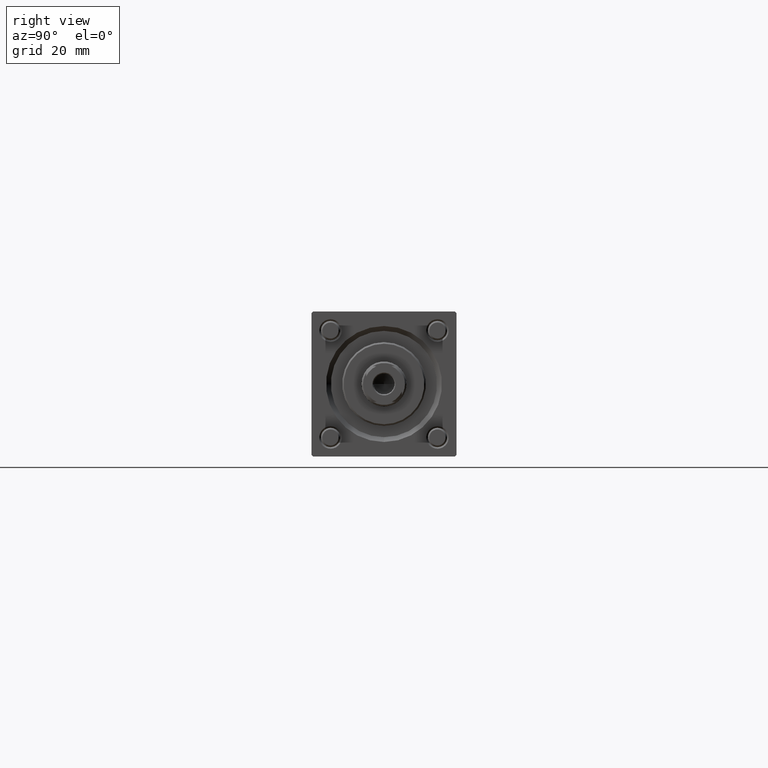
[diagram: clean part render]
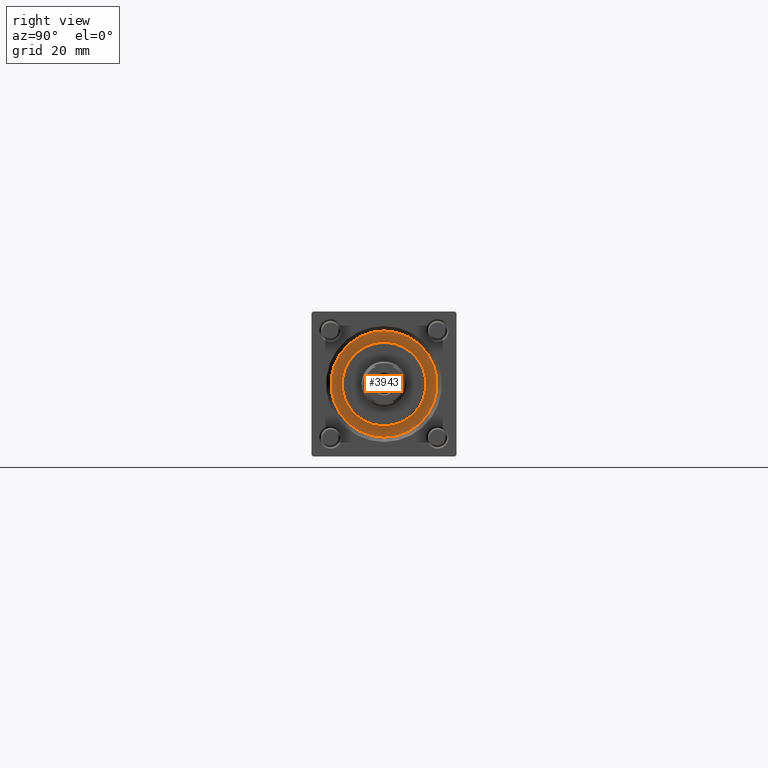
[diagram: same view with one face highlighted and labeled with its STEP entity id]
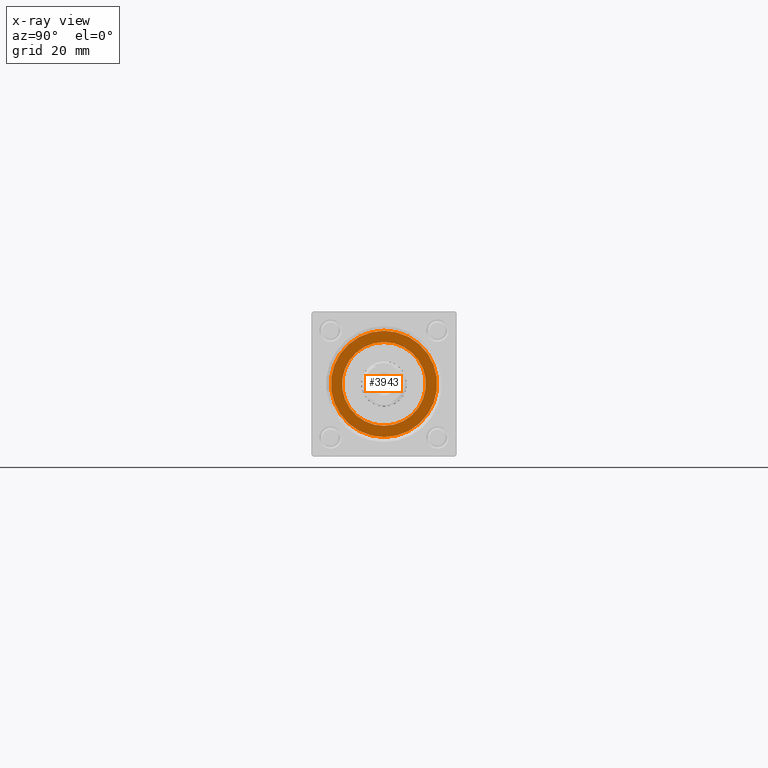
[diagram: x-ray of the same camera — body ghosted, the highlighted face saturated]
A machine part, right view. The second image highlights one B-rep face of the part: STEP entity #3943.
The next image is the same camera in x-ray: the body ghosted, the highlighted face saturated — about 0% of this face is hidden behind the body in this view.
In plain terms, the highlighted planar face has unit normal (1, 0, 0).
Its self-contained STEP definition (entity closure, byte-faithful):
#2400 = DIRECTION ( 'NONE',  ( 1.000000000000000000, 0.000000000000000000, 0.000000000000000000 ) ) ;
#3259 = EDGE_CURVE ( 'NONE', #10520, #31552, #44677, .T. ) ;
#3922 = ORIENTED_EDGE ( 'NONE', *, *, #33431, .F. ) ;
#3943 = ADVANCED_FACE ( 'NONE', ( #56007, #16642 ), #26118, .T. ) ;
#4917 = VERTEX_POINT ( 'NONE', #55317 ) ;
#5177 = EDGE_CURVE ( 'NONE', #31552, #10520, #22773, .T. ) ;
#6051 = DIRECTION ( 'NONE',  ( 1.000000000000000000, 0.000000000000000000, 0.000000000000000000 ) ) ;
#7722 = DIRECTION ( 'NONE',  ( 1.000000000000000000, 0.000000000000000000, -0.000000000000000000 ) ) ;
#10520 = VERTEX_POINT ( 'NONE', #31770 ) ;
#11978 = ORIENTED_EDGE ( 'NONE', *, *, #3259, .T. ) ;
#13494 = DIRECTION ( 'NONE',  ( 0.000000000000000000, 0.000000000000000000, 1.000000000000000000 ) ) ;
#13790 = CARTESIAN_POINT ( 'NONE',  ( -13.00000000000000178, 0.000000000000000000, 28.69999999999999929 ) ) ;
#16642 = FACE_OUTER_BOUND ( 'NONE', #36945, .T. ) ;
#16752 = DIRECTION ( 'NONE',  ( 0.000000000000000000, 0.000000000000000000, 1.000000000000000000 ) ) ;
#20642 = CIRCLE ( 'NONE', #52761, 13.00000000000000178 ) ;
#22752 = DIRECTION ( 'NONE',  ( 0.000000000000000000, 0.000000000000000000, 1.000000000000000000 ) ) ;
#22773 = CIRCLE ( 'NONE', #44808, 16.50000000000000000 ) ;
#23438 = AXIS2_PLACEMENT_3D ( 'NONE', #31393, #22752, #6051 ) ;
#25792 = ORIENTED_EDGE ( 'NONE', *, *, #34241, .F. ) ;
#25803 = EDGE_LOOP ( 'NONE', ( #25792, #3922 ) ) ;
#26118 = PLANE ( 'NONE',  #42897 ) ;
#29090 = AXIS2_PLACEMENT_3D ( 'NONE', #34673, #56783, #43005 ) ;
#30727 = DIRECTION ( 'NONE',  ( 0.000000000000000000, 0.000000000000000000, 1.000000000000000000 ) ) ;
#31181 = ORIENTED_EDGE ( 'NONE', *, *, #5177, .T. ) ;
#31393 = CARTESIAN_POINT ( 'NONE',  ( 0.000000000000000000, 0.000000000000000000, 28.69999999999999929 ) ) ;
#31552 = VERTEX_POINT ( 'NONE', #31688 ) ;
#31688 = CARTESIAN_POINT ( 'NONE',  ( 16.50000000000000000, 2.020667218593133100E-15, 28.69999999999999929 ) ) ;
#31770 = CARTESIAN_POINT ( 'NONE',  ( -16.50000000000000000, 0.000000000000000000, 28.69999999999999929 ) ) ;
#33431 = EDGE_CURVE ( 'NONE', #4917, #48296, #20642, .T. ) ;
#34241 = EDGE_CURVE ( 'NONE', #48296, #4917, #45466, .T. ) ;
#34673 = CARTESIAN_POINT ( 'NONE',  ( 0.000000000000000000, 0.000000000000000000, 28.69999999999999929 ) ) ;
#36945 = EDGE_LOOP ( 'NONE', ( #11978, #31181 ) ) ;
#38493 = CARTESIAN_POINT ( 'NONE',  ( 0.000000000000000000, 0.000000000000000000, 28.69999999999999929 ) ) ;
#39081 = DIRECTION ( 'NONE',  ( 1.000000000000000000, 0.000000000000000000, 0.000000000000000000 ) ) ;
#42897 = AXIS2_PLACEMENT_3D ( 'NONE', #38493, #30727, #7722 ) ;
#43005 = DIRECTION ( 'NONE',  ( 1.000000000000000000, 0.000000000000000000, 0.000000000000000000 ) ) ;
#44677 = CIRCLE ( 'NONE', #29090, 16.50000000000000000 ) ;
#44808 = AXIS2_PLACEMENT_3D ( 'NONE', #47980, #13494, #39081 ) ;
#45466 = CIRCLE ( 'NONE', #23438, 13.00000000000000178 ) ;
#47980 = CARTESIAN_POINT ( 'NONE',  ( 0.000000000000000000, 0.000000000000000000, 28.69999999999999929 ) ) ;
#48296 = VERTEX_POINT ( 'NONE', #13790 ) ;
#52761 = AXIS2_PLACEMENT_3D ( 'NONE', #56124, #16752, #2400 ) ;
#55317 = CARTESIAN_POINT ( 'NONE',  ( 13.00000000000000178, 1.592040838891559293E-15, 28.69999999999999929 ) ) ;
#56007 = FACE_BOUND ( 'NONE', #25803, .T. ) ;
#56124 = CARTESIAN_POINT ( 'NONE',  ( 0.000000000000000000, 0.000000000000000000, 28.69999999999999929 ) ) ;
#56783 = DIRECTION ( 'NONE',  ( 0.000000000000000000, 0.000000000000000000, 1.000000000000000000 ) ) ;